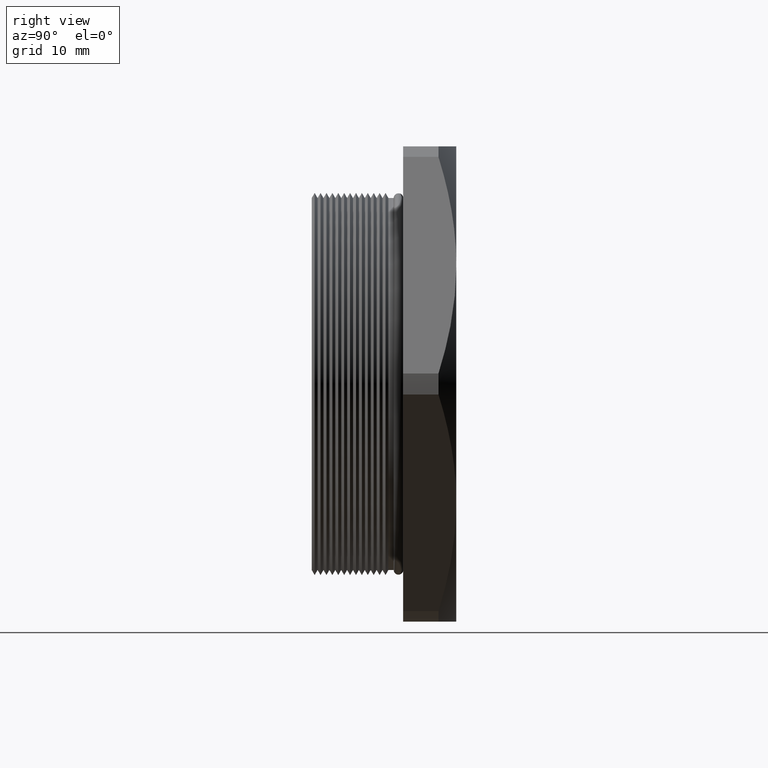
[diagram: clean part render]
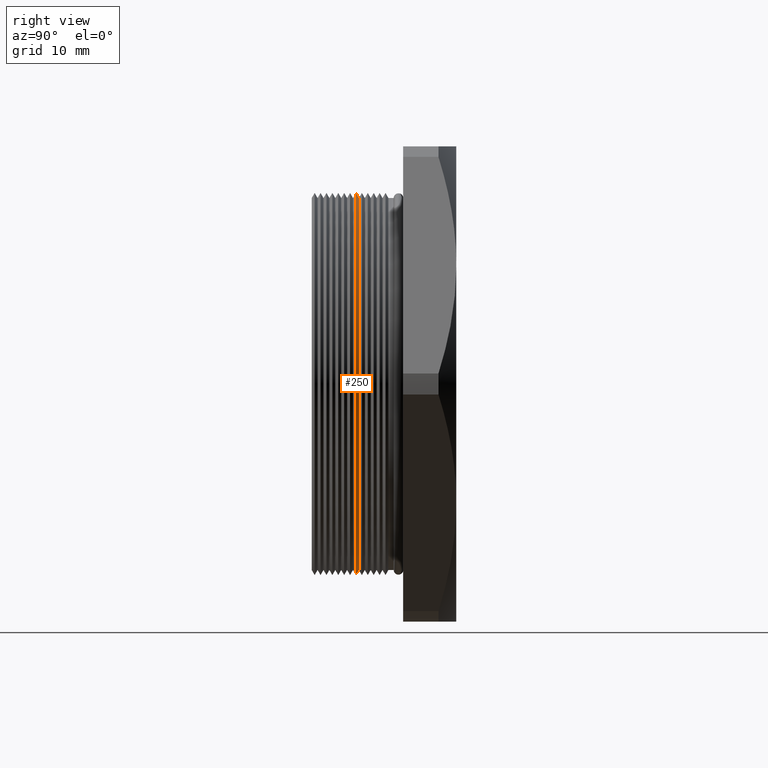
[diagram: same view with one face highlighted and labeled with its STEP entity id]
A machine part, right view. The second image highlights one B-rep face of the part: STEP entity #250.
In plain terms, the highlighted conical surface has half-angle 60 deg.
Its self-contained STEP definition (entity closure, byte-faithful):
#246 = EDGE_CURVE ( 'NONE', #325, #247, #1055, .T. ) ;
#247 = VERTEX_POINT ( 'NONE', #1050 ) ;
#250 = ADVANCED_FACE ( 'NONE', ( #1045 ), #1043, .T. ) ;
#251 = EDGE_LOOP ( 'NONE', ( #252, #348, #350, #351 ) ) ;
#252 = ORIENTED_EDGE ( 'NONE', *, *, #253, .T. ) ;
#253 = EDGE_CURVE ( 'NONE', #346, #347, #1038, .T. ) ;
#325 = VERTEX_POINT ( 'NONE', #1210 ) ;
#346 = VERTEX_POINT ( 'NONE', #1240 ) ;
#347 = VERTEX_POINT ( 'NONE', #1239 ) ;
#348 = ORIENTED_EDGE ( 'NONE', *, *, #349, .T. ) ;
#349 = EDGE_CURVE ( 'NONE', #347, #247, #1238, .T. ) ;
#350 = ORIENTED_EDGE ( 'NONE', *, *, #246, .F. ) ;
#351 = ORIENTED_EDGE ( 'NONE', *, *, #352, .F. ) ;
#352 = EDGE_CURVE ( 'NONE', #346, #325, #1234, .T. ) ;
#1035 = DIRECTION ( 'NONE',  ( 0.0000000000000000000, 0.0000000000000000000, -1.000000000000000000 ) ) ;
#1036 = DIRECTION ( 'NONE',  ( 0.0000000000000000000, -1.000000000000000000, 0.0000000000000000000 ) ) ;
#1037 = AXIS2_PLACEMENT_3D ( 'NONE', #1044, #1036, #1035 ) ;
#1038 = CIRCLE ( 'NONE', #1037, 0.6300000000000000000 ) ;
#1039 = DIRECTION ( 'NONE',  ( 0.0000000000000000000, 0.0000000000000000000, -1.000000000000000000 ) ) ;
#1040 = DIRECTION ( 'NONE',  ( 0.0000000000000000000, -1.000000000000000000, 0.0000000000000000000 ) ) ;
#1041 = CARTESIAN_POINT ( 'NONE',  ( 0.0000000000000000000, 0.1599999999999998900, 0.0000000000000000000 ) ) ;
#1042 = AXIS2_PLACEMENT_3D ( 'NONE', #1041, #1040, #1039 ) ;
#1043 = CONICAL_SURFACE ( 'NONE', #1042, 0.6300000000000000000, 1.047197551196589400 ) ;
#1044 = CARTESIAN_POINT ( 'NONE',  ( 0.0000000000000000000, 0.1599999999999998900, 0.0000000000000000000 ) ) ;
#1045 = FACE_OUTER_BOUND ( 'NONE', #251, .T. ) ;
#1050 = CARTESIAN_POINT ( 'NONE',  ( 7.927389882373304600E-017, 0.1499999999999998000, 0.6473205080756885300 ) ) ;
#1051 = DIRECTION ( 'NONE',  ( 0.0000000000000000000, 0.0000000000000000000, -1.000000000000000000 ) ) ;
#1052 = DIRECTION ( 'NONE',  ( 0.0000000000000000000, -1.000000000000000000, 0.0000000000000000000 ) ) ;
#1053 = CARTESIAN_POINT ( 'NONE',  ( 0.0000000000000000000, 0.1499999999999998000, 0.0000000000000000000 ) ) ;
#1054 = AXIS2_PLACEMENT_3D ( 'NONE', #1053, #1052, #1051 ) ;
#1055 = CIRCLE ( 'NONE', #1054, 0.6473205080756885300 ) ;
#1210 = CARTESIAN_POINT ( 'NONE',  ( 0.0000000000000000000, 0.1499999999999998000, -0.6473205080756885300 ) ) ;
#1231 = DIRECTION ( 'NONE',  ( 0.0000000000000000000, -0.5000000000000072200, -0.8660254037844344900 ) ) ;
#1232 = VECTOR ( 'NONE', #1231, 39.37007874015748100 ) ;
#1233 = CARTESIAN_POINT ( 'NONE',  ( 0.0000000000000000000, 0.1599999999999998900, -0.6300000000000000000 ) ) ;
#1234 = LINE ( 'NONE', #1233, #1232 ) ;
#1235 = DIRECTION ( 'NONE',  ( 1.060575238724901900E-016, -0.5000000000000072200, 0.8660254037844344900 ) ) ;
#1236 = VECTOR ( 'NONE', #1235, 39.37007874015748100 ) ;
#1237 = CARTESIAN_POINT ( 'NONE',  ( 7.715274834628325400E-017, 0.1599999999999998900, 0.6300000000000000000 ) ) ;
#1238 = LINE ( 'NONE', #1237, #1236 ) ;
#1239 = CARTESIAN_POINT ( 'NONE',  ( 0.0000000000000000000, 0.1599999999999998900, 0.6300000000000000000 ) ) ;
#1240 = CARTESIAN_POINT ( 'NONE',  ( 7.821332358500815000E-017, 0.1599999999999998900, -0.6300000000000000000 ) ) ;